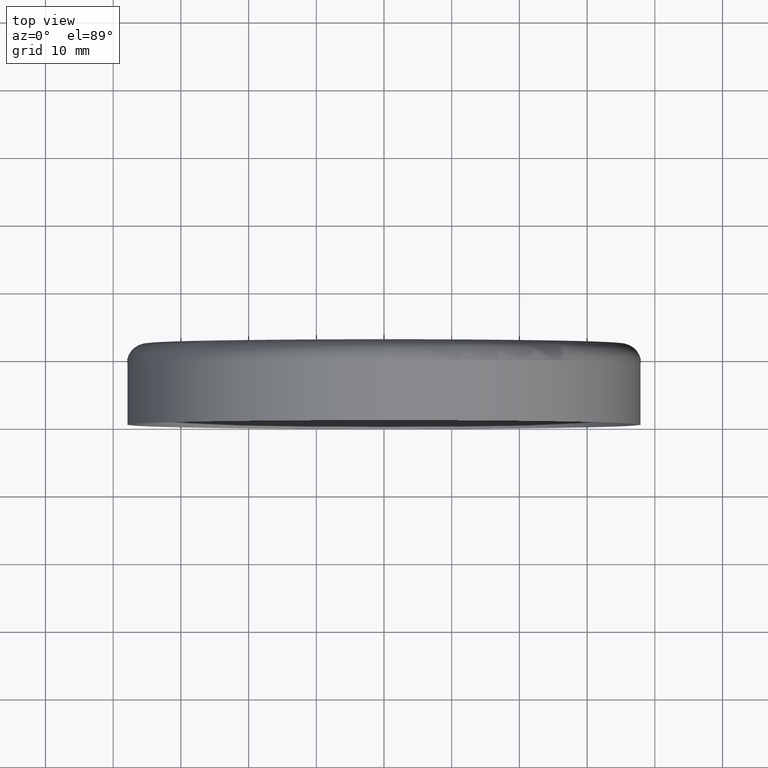
[diagram: clean part render]
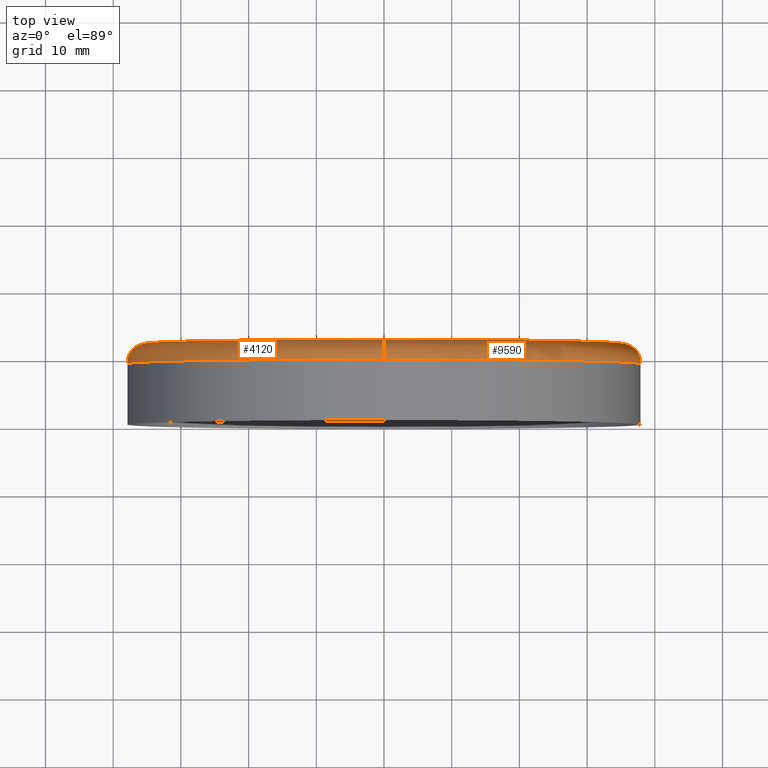
[diagram: same view with one multi-face feature highlighted, each face labeled with its STEP entity id]
A machine part, top view. The highlighted faces form ONE feature: a constant-radius fillet chain: 2 tangent blend faces with common blend radius 3 mm. The faces share edges in the B-rep.
Their STEP definitions:
[1] entity #4120 (Torus):
#1364 = CARTESIAN_POINT ( 'NONE',  ( 0.000000000000000000, 9.000000000000001776, 0.000000000000000000 ) ) ;
#1651 = VERTEX_POINT ( 'NONE', #11176 ) ;
#1804 = DIRECTION ( 'NONE',  ( -1.000000000000000000, 0.000000000000000000, 0.000000000000000000 ) ) ;
#2046 = EDGE_CURVE ( 'NONE', #12601, #1651, #13607, .T. ) ;
#2302 = VERTEX_POINT ( 'NONE', #4967 ) ;
#2431 = DIRECTION ( 'NONE',  ( -0.000000000000000000, -1.000000000000000000, -0.000000000000000000 ) ) ;
#2529 = CIRCLE ( 'NONE', #6135, 3.000000000000002665 ) ;
#3221 = EDGE_CURVE ( 'NONE', #3922, #1651, #2529, .T. ) ;
#3264 = CIRCLE ( 'NONE', #4021, 3.000000000000002665 ) ;
#3644 = DIRECTION ( 'NONE',  ( 0.000000000000000000, 0.000000000000000000, -1.000000000000000000 ) ) ;
#3653 = TOROIDAL_SURFACE ( 'NONE', #15211, 35.00000000000000000, 3.000000000000000888 ) ;
#3754 = ORIENTED_EDGE ( 'NONE', *, *, #14754, .F. ) ;
#3894 = ORIENTED_EDGE ( 'NONE', *, *, #3221, .T. ) ;
#3922 = VERTEX_POINT ( 'NONE', #6669 ) ;
#4021 = AXIS2_PLACEMENT_3D ( 'NONE', #15167, #4330, #12651 ) ;
#4120 = ADVANCED_FACE ( 'NONE', ( #6248 ), #3653, .T. ) ;
#4330 = DIRECTION ( 'NONE',  ( 1.000000000000000000, 0.000000000000000000, -1.224646799147353207E-16 ) ) ;
#4967 = CARTESIAN_POINT ( 'NONE',  ( 4.469960816887840007E-15, 12.00000000000000000, 35.00000000000000000 ) ) ;
#5368 = CARTESIAN_POINT ( 'NONE',  ( 0.000000000000000000, 9.000000000000001776, -35.00000000000000000 ) ) ;
#5979 = CARTESIAN_POINT ( 'NONE',  ( 0.000000000000000000, 9.000000000000001776, 0.000000000000000000 ) ) ;
#6135 = AXIS2_PLACEMENT_3D ( 'NONE', #5368, #1804, #13742 ) ;
#6248 = FACE_OUTER_BOUND ( 'NONE', #9921, .T. ) ;
#6387 = CARTESIAN_POINT ( 'NONE',  ( 0.000000000000000000, 12.00000000000000000, 0.000000000000000000 ) ) ;
#6669 = CARTESIAN_POINT ( 'NONE',  ( 0.000000000000000000, 12.00000000000000000, -35.00000000000000000 ) ) ;
#6691 = ORIENTED_EDGE ( 'NONE', *, *, #2046, .F. ) ;
#6796 = AXIS2_PLACEMENT_3D ( 'NONE', #6387, #8806, #8587 ) ;
#8587 = DIRECTION ( 'NONE',  ( 0.000000000000000000, 0.000000000000000000, -1.000000000000000000 ) ) ;
#8806 = DIRECTION ( 'NONE',  ( -0.000000000000000000, -1.000000000000000000, -0.000000000000000000 ) ) ;
#9356 = AXIS2_PLACEMENT_3D ( 'NONE', #1364, #9849, #14522 ) ;
#9849 = DIRECTION ( 'NONE',  ( -0.000000000000000000, -1.000000000000000000, -0.000000000000000000 ) ) ;
#9921 = EDGE_LOOP ( 'NONE', ( #3754, #15228, #3894, #6691 ) ) ;
#10754 = CIRCLE ( 'NONE', #6796, 35.00000000000000000 ) ;
#11176 = CARTESIAN_POINT ( 'NONE',  ( 0.000000000000000000, 9.000000000000001776, -38.00000000000000711 ) ) ;
#12601 = VERTEX_POINT ( 'NONE', #14858 ) ;
#12651 = DIRECTION ( 'NONE',  ( -1.224646799147351975E-16, 0.000000000000000000, -1.000000000000000000 ) ) ;
#12867 = EDGE_CURVE ( 'NONE', #2302, #3922, #10754, .T. ) ;
#13607 = CIRCLE ( 'NONE', #9356, 38.00000000000000711 ) ;
#13742 = DIRECTION ( 'NONE',  ( 0.000000000000000000, 0.000000000000000000, 1.000000000000000000 ) ) ;
#14522 = DIRECTION ( 'NONE',  ( 0.000000000000000000, 0.000000000000000000, -1.000000000000000000 ) ) ;
#14754 = EDGE_CURVE ( 'NONE', #2302, #12601, #3264, .T. ) ;
#14858 = CARTESIAN_POINT ( 'NONE',  ( 4.653657836759942730E-15, 9.000000000000001776, 38.00000000000000711 ) ) ;
#15167 = CARTESIAN_POINT ( 'NONE',  ( 4.286263797015736496E-15, 9.000000000000001776, 35.00000000000000000 ) ) ;
#15211 = AXIS2_PLACEMENT_3D ( 'NONE', #5979, #2431, #3644 ) ;
#15228 = ORIENTED_EDGE ( 'NONE', *, *, #12867, .T. ) ;
[2] entity #9590 (Torus):
#556 = DIRECTION ( 'NONE',  ( 0.000000000000000000, 0.000000000000000000, -1.000000000000000000 ) ) ;
#716 = DIRECTION ( 'NONE',  ( 0.000000000000000000, 0.000000000000000000, -1.000000000000000000 ) ) ;
#880 = EDGE_CURVE ( 'NONE', #1651, #12601, #15127, .T. ) ;
#1260 = CARTESIAN_POINT ( 'NONE',  ( 0.000000000000000000, 12.00000000000000000, 0.000000000000000000 ) ) ;
#1651 = VERTEX_POINT ( 'NONE', #11176 ) ;
#1804 = DIRECTION ( 'NONE',  ( -1.000000000000000000, 0.000000000000000000, 0.000000000000000000 ) ) ;
#2279 = EDGE_LOOP ( 'NONE', ( #2507, #3012, #15040, #5810 ) ) ;
#2294 = AXIS2_PLACEMENT_3D ( 'NONE', #1260, #15467, #12322 ) ;
#2302 = VERTEX_POINT ( 'NONE', #4967 ) ;
#2507 = ORIENTED_EDGE ( 'NONE', *, *, #10264, .T. ) ;
#2529 = CIRCLE ( 'NONE', #6135, 3.000000000000002665 ) ;
#3012 = ORIENTED_EDGE ( 'NONE', *, *, #14754, .T. ) ;
#3221 = EDGE_CURVE ( 'NONE', #3922, #1651, #2529, .T. ) ;
#3264 = CIRCLE ( 'NONE', #4021, 3.000000000000002665 ) ;
#3922 = VERTEX_POINT ( 'NONE', #6669 ) ;
#4021 = AXIS2_PLACEMENT_3D ( 'NONE', #15167, #4330, #12651 ) ;
#4330 = DIRECTION ( 'NONE',  ( 1.000000000000000000, 0.000000000000000000, -1.224646799147353207E-16 ) ) ;
#4967 = CARTESIAN_POINT ( 'NONE',  ( 4.469960816887840007E-15, 12.00000000000000000, 35.00000000000000000 ) ) ;
#5368 = CARTESIAN_POINT ( 'NONE',  ( 0.000000000000000000, 9.000000000000001776, -35.00000000000000000 ) ) ;
#5810 = ORIENTED_EDGE ( 'NONE', *, *, #3221, .F. ) ;
#6069 = CIRCLE ( 'NONE', #2294, 35.00000000000000000 ) ;
#6135 = AXIS2_PLACEMENT_3D ( 'NONE', #5368, #1804, #13742 ) ;
#6483 = DIRECTION ( 'NONE',  ( -0.000000000000000000, -1.000000000000000000, -0.000000000000000000 ) ) ;
#6669 = CARTESIAN_POINT ( 'NONE',  ( 0.000000000000000000, 12.00000000000000000, -35.00000000000000000 ) ) ;
#7475 = CARTESIAN_POINT ( 'NONE',  ( 0.000000000000000000, 9.000000000000001776, 0.000000000000000000 ) ) ;
#7915 = AXIS2_PLACEMENT_3D ( 'NONE', #7475, #6483, #556 ) ;
#9590 = ADVANCED_FACE ( 'NONE', ( #12843 ), #13977, .T. ) ;
#10264 = EDGE_CURVE ( 'NONE', #3922, #2302, #6069, .T. ) ;
#10371 = CARTESIAN_POINT ( 'NONE',  ( 0.000000000000000000, 9.000000000000001776, 0.000000000000000000 ) ) ;
#11176 = CARTESIAN_POINT ( 'NONE',  ( 0.000000000000000000, 9.000000000000001776, -38.00000000000000711 ) ) ;
#11579 = DIRECTION ( 'NONE',  ( -0.000000000000000000, -1.000000000000000000, -0.000000000000000000 ) ) ;
#12322 = DIRECTION ( 'NONE',  ( 0.000000000000000000, 0.000000000000000000, -1.000000000000000000 ) ) ;
#12601 = VERTEX_POINT ( 'NONE', #14858 ) ;
#12651 = DIRECTION ( 'NONE',  ( -1.224646799147351975E-16, 0.000000000000000000, -1.000000000000000000 ) ) ;
#12843 = FACE_OUTER_BOUND ( 'NONE', #2279, .T. ) ;
#13373 = AXIS2_PLACEMENT_3D ( 'NONE', #10371, #11579, #716 ) ;
#13742 = DIRECTION ( 'NONE',  ( 0.000000000000000000, 0.000000000000000000, 1.000000000000000000 ) ) ;
#13977 = TOROIDAL_SURFACE ( 'NONE', #7915, 35.00000000000000000, 3.000000000000000888 ) ;
#14754 = EDGE_CURVE ( 'NONE', #2302, #12601, #3264, .T. ) ;
#14858 = CARTESIAN_POINT ( 'NONE',  ( 4.653657836759942730E-15, 9.000000000000001776, 38.00000000000000711 ) ) ;
#15040 = ORIENTED_EDGE ( 'NONE', *, *, #880, .F. ) ;
#15127 = CIRCLE ( 'NONE', #13373, 38.00000000000000711 ) ;
#15167 = CARTESIAN_POINT ( 'NONE',  ( 4.286263797015736496E-15, 9.000000000000001776, 35.00000000000000000 ) ) ;
#15467 = DIRECTION ( 'NONE',  ( -0.000000000000000000, -1.000000000000000000, -0.000000000000000000 ) ) ;